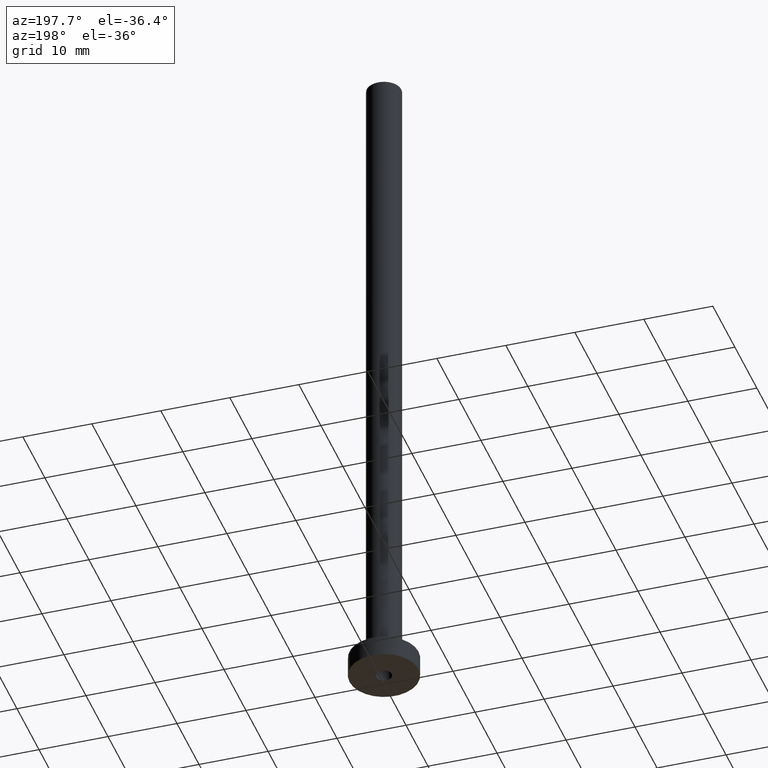
[diagram: clean part render]
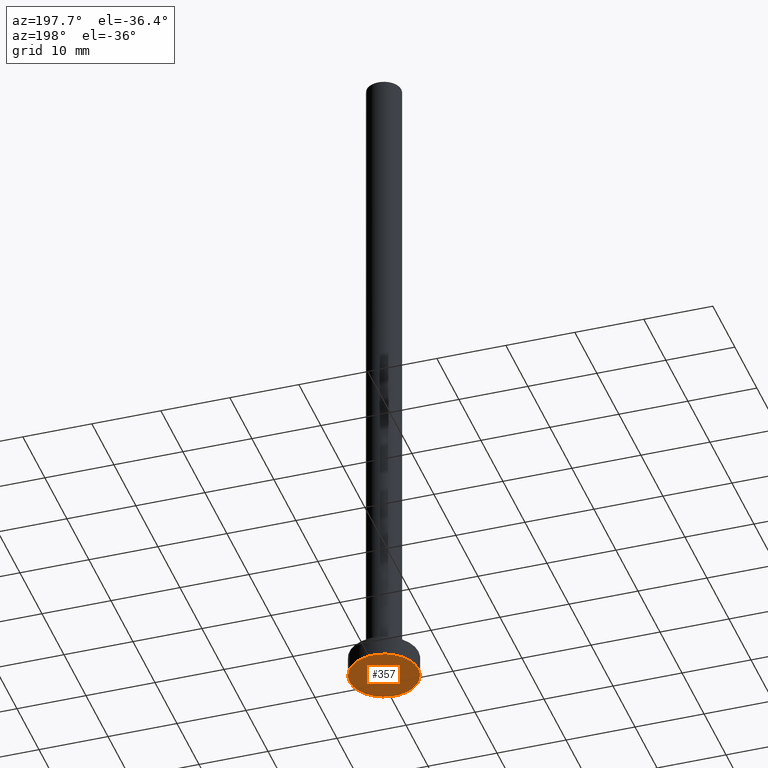
[diagram: same view with one face highlighted and labeled with its STEP entity id]
A machine part, auxiliary view. The second image highlights one B-rep face of the part: STEP entity #357.
In plain terms, the highlighted planar face has unit normal (0, 0, 1).
Its self-contained STEP definition (entity closure, byte-faithful):
#8 = CARTESIAN_POINT ( 'NONE',  ( 1.149999999999999911, 1.408343819019456028E-16, 0.000000000000000000 ) ) ;
#14 = AXIS2_PLACEMENT_3D ( 'NONE', #179, #30, #71 ) ;
#21 = CARTESIAN_POINT ( 'NONE',  ( 0.000000000000000000, 0.000000000000000000, 0.000000000000000000 ) ) ;
#30 = DIRECTION ( 'NONE',  ( -0.000000000000000000, -0.000000000000000000, -1.000000000000000000 ) ) ;
#36 = EDGE_LOOP ( 'NONE', ( #207, #435 ) ) ;
#40 = DIRECTION ( 'NONE',  ( 0.000000000000000000, 0.000000000000000000, 1.000000000000000000 ) ) ;
#71 = DIRECTION ( 'NONE',  ( 1.000000000000000000, 0.000000000000000000, 0.000000000000000000 ) ) ;
#73 = VERTEX_POINT ( 'NONE', #86 ) ;
#76 = AXIS2_PLACEMENT_3D ( 'NONE', #21, #265, #412 ) ;
#86 = CARTESIAN_POINT ( 'NONE',  ( -1.149999999999999911, 0.000000000000000000, 0.000000000000000000 ) ) ;
#130 = EDGE_LOOP ( 'NONE', ( #220, #459 ) ) ;
#138 = EDGE_CURVE ( 'NONE', #419, #73, #396, .T. ) ;
#148 = AXIS2_PLACEMENT_3D ( 'NONE', #271, #417, #274 ) ;
#149 = DIRECTION ( 'NONE',  ( 1.000000000000000000, 0.000000000000000000, 0.000000000000000000 ) ) ;
#152 = CARTESIAN_POINT ( 'NONE',  ( 0.000000000000000000, 0.000000000000000000, 0.000000000000000000 ) ) ;
#153 = CIRCLE ( 'NONE', #416, 5.000000000000000000 ) ;
#159 = FACE_BOUND ( 'NONE', #130, .T. ) ;
#167 = FACE_OUTER_BOUND ( 'NONE', #36, .T. ) ;
#179 = CARTESIAN_POINT ( 'NONE',  ( 0.000000000000000000, 0.000000000000000000, 0.000000000000000000 ) ) ;
#190 = AXIS2_PLACEMENT_3D ( 'NONE', #152, #446, #149 ) ;
#200 = EDGE_CURVE ( 'NONE', #413, #211, #256, .T. ) ;
#207 = ORIENTED_EDGE ( 'NONE', *, *, #443, .F. ) ;
#211 = VERTEX_POINT ( 'NONE', #421 ) ;
#220 = ORIENTED_EDGE ( 'NONE', *, *, #449, .F. ) ;
#245 = CIRCLE ( 'NONE', #14, 1.149999999999999911 ) ;
#247 = CARTESIAN_POINT ( 'NONE',  ( 0.000000000000000000, 0.000000000000000000, 0.000000000000000000 ) ) ;
#256 = CIRCLE ( 'NONE', #148, 5.000000000000000000 ) ;
#265 = DIRECTION ( 'NONE',  ( 0.000000000000000000, 0.000000000000000000, 1.000000000000000000 ) ) ;
#271 = CARTESIAN_POINT ( 'NONE',  ( 0.000000000000000000, 0.000000000000000000, 0.000000000000000000 ) ) ;
#274 = DIRECTION ( 'NONE',  ( 1.000000000000000000, 0.000000000000000000, 0.000000000000000000 ) ) ;
#285 = CARTESIAN_POINT ( 'NONE',  ( 5.000000000000000000, 6.123233995736766282E-16, 0.000000000000000000 ) ) ;
#305 = PLANE ( 'NONE',  #76 ) ;
#314 = DIRECTION ( 'NONE',  ( 1.000000000000000000, 0.000000000000000000, 0.000000000000000000 ) ) ;
#357 = ADVANCED_FACE ( 'NONE', ( #159, #167 ), #305, .F. ) ;
#396 = CIRCLE ( 'NONE', #190, 1.149999999999999911 ) ;
#412 = DIRECTION ( 'NONE',  ( 1.000000000000000000, 0.000000000000000000, -0.000000000000000000 ) ) ;
#413 = VERTEX_POINT ( 'NONE', #285 ) ;
#416 = AXIS2_PLACEMENT_3D ( 'NONE', #247, #40, #314 ) ;
#417 = DIRECTION ( 'NONE',  ( 0.000000000000000000, 0.000000000000000000, 1.000000000000000000 ) ) ;
#419 = VERTEX_POINT ( 'NONE', #8 ) ;
#421 = CARTESIAN_POINT ( 'NONE',  ( -5.000000000000000000, 0.000000000000000000, 0.000000000000000000 ) ) ;
#435 = ORIENTED_EDGE ( 'NONE', *, *, #200, .F. ) ;
#443 = EDGE_CURVE ( 'NONE', #211, #413, #153, .T. ) ;
#446 = DIRECTION ( 'NONE',  ( -0.000000000000000000, -0.000000000000000000, -1.000000000000000000 ) ) ;
#449 = EDGE_CURVE ( 'NONE', #73, #419, #245, .T. ) ;
#459 = ORIENTED_EDGE ( 'NONE', *, *, #138, .F. ) ;